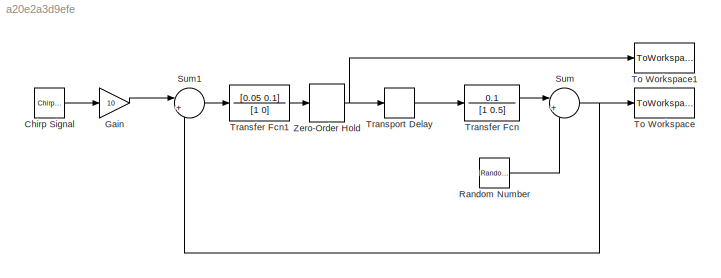
MODEL slx_a20e2a3d9efe
KIND model
CONFIG AbsTol = auto
CONFIG FixedStep = auto
CONFIG MaxStep = auto
CONFIG MinStep = auto
CONFIG RelTol = 1e-3
CONFIG SampleTimeConstraint = Unconstrained
CONFIG Solver = ode45
CONFIG SolverMode = Auto
CONFIG SolverName = ode45
CONFIG StartTime = 0.0
CONFIG StopTime = 500
BLOCK [Reference] Chirp Signal  REF=simulink/Sources/Chirp Signal
  Ports = [0, 1]
  SourceBlock = simulink/Sources/Chirp Signal
  SourceType = chirp
BLOCK [Gain] Gain
  Gain = 10
BLOCK [RandomNumber] Random Number
  SampleTime = 0.5
  Seed = 13
  Variance = 0.01
BLOCK [Sum] Sum
  IconShape = round
  Inputs = |++
  Ports = [2, 1]
BLOCK [Sum] Sum1
  IconShape = round
  Inputs = |+-
  Ports = [2, 1]
BLOCK [ToWorkspace] To Workspace
  MaxDataPoints = inf
  Ports = [1]
  SampleTime = 0.5
  VariableName = y
BLOCK [ToWorkspace] To Workspace1
  MaxDataPoints = inf
  Ports = [1]
  SampleTime = 0.5
  VariableName = u
BLOCK [TransferFcn] Transfer Fcn
  Denominator = [1 0.5]
  Numerator = 0.1
BLOCK [TransferFcn] Transfer Fcn1
  Denominator = [1 0]
  Numerator = [0.05 0.1]
BLOCK [TransportDelay] Transport Delay
  DelayTime = 1.001
  Ports = [1, 1]
BLOCK [ZeroOrderHold] Zero-Order Hold
LINE Chirp Signal:1 -> Gain:1
LINE Gain:1 -> Sum1:1
LINE Random Number:1 -> Sum:2
LINE Sum1:1 -> Transfer Fcn1:1
NET Sum:1 -> Sum1:2, To Workspace:1
LINE Transfer Fcn1:1 -> Zero-Order Hold:1
LINE Transfer Fcn:1 -> Sum:1
LINE Transport Delay:1 -> Transfer Fcn:1
NET Zero-Order Hold:1 -> To Workspace1:1, Transport Delay:1
note: NET lines group one-source signal fan-out (src -> all destinations, sorted); 1:1 wires keep LINE
